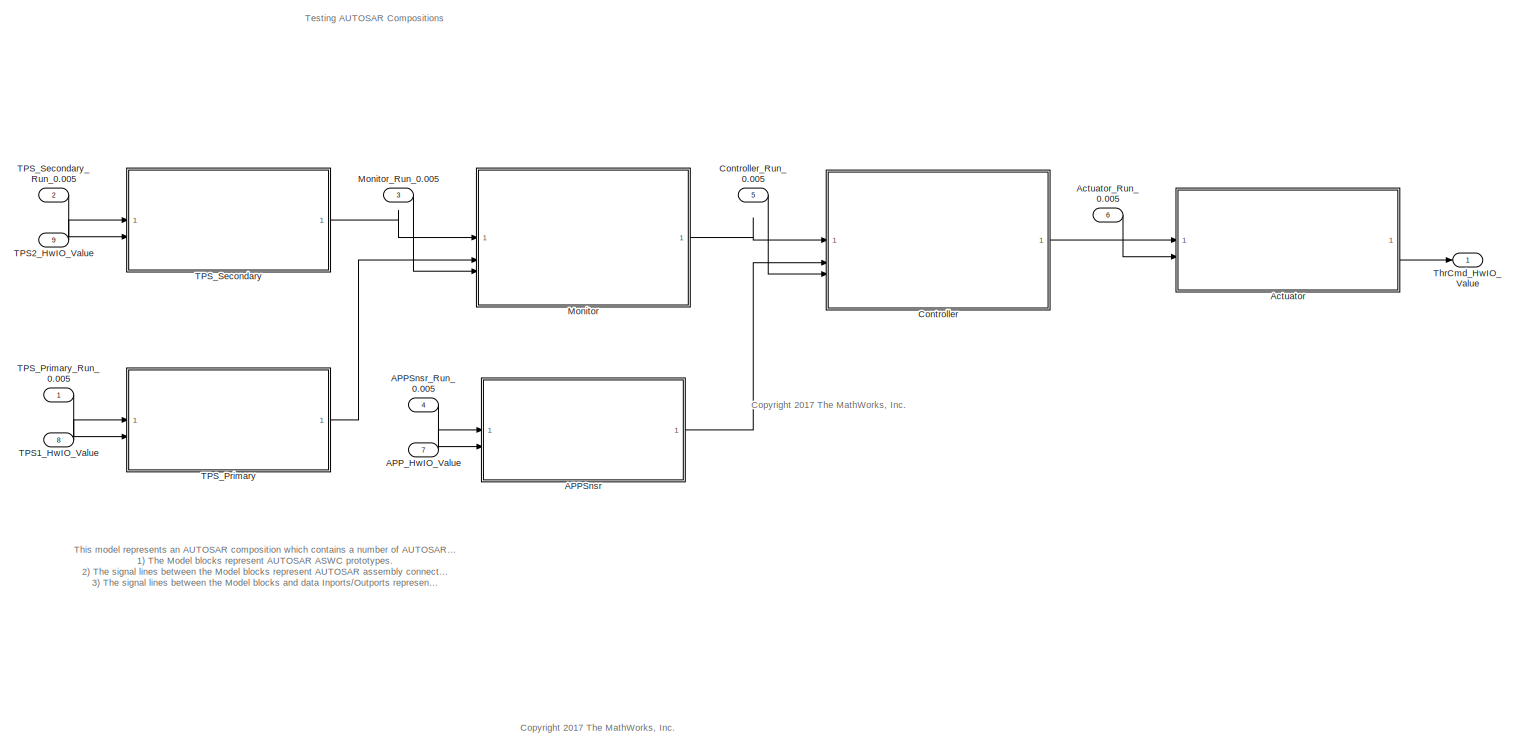
[diagram: root canvas - part 1/1, most of the canvas]
MODEL slx_12cc5ac3df1b
KIND model
CONFIG AbsTol = auto
CONFIG EnableMultiTasking = on
CONFIG FixedStep = 0.005
CONFIG MaxStep = auto
CONFIG MinStep = auto
CONFIG RelTol = 1e-3
CONFIG SampleTimeConstraint = Unconstrained
CONFIG SolverName = FixedStepDiscrete
CONFIG StartTime = 0.0
CONFIG StopTime = 1.5
BLOCK [ModelReference] APPSnsr
  CachedPortDiscreteRates = [0.005]
  ModelEventPortInfo = P:D1[0.005][0][0]
  ModelNameDialog = sltestAccelerationPedalPositionSensorMdlRef
  ModelReferenceVersion = 4.0
  PortDiscreteRates = 0.005
  ScheduleRates = on
BLOCK [Inport] APPSnsr_Run_0.005
  OutputFunctionCall = on
  Port = 4
  SampleTime = 0.005
BLOCK [Inport] APP_HwIO_Value
  OutDataTypeStr = uint16
  Port = 7
  PortDimensions = 1
  SamplingMode = Sample based
  SignalType = real
BLOCK [ModelReference] Actuator
  CachedPortDiscreteRates = [0.005]
  ModelEventPortInfo = P:D1[0.005][0][0]
  ModelNameDialog = sltestThrottlePositionActuatorMdlRef
  ModelReferenceVersion = 4.0
  PortDiscreteRates = 0.005
  ScheduleRates = on
BLOCK [Inport] Actuator_Run_0.005
  OutputFunctionCall = on
  Port = 6
  SampleTime = 0.005
BLOCK [ModelReference] Controller
  CachedPortDiscreteRates = [0.005]
  CodeInterface = Top model
  ModelEventPortInfo = P:D1[0.005][0][0]
  ModelNameDialog = sltestThrottlePositionControllerMdlRef
  ModelReferenceVersion = 4.0
  PortDiscreteRates = 0.005
  ScheduleRates = on
BLOCK [Inport] Controller_Run_0.005
  OutputFunctionCall = on
  Port = 5
  SampleTime = 0.005
BLOCK [ModelReference] Monitor
  CachedPortDiscreteRates = [0.005]
  CodeInterface = Top model
  ModelEventPortInfo = P:D1[0.005][0][0]
  ModelNameDialog = sltestThrottlePositionMonitorMdlRef
  ModelReferenceVersion = 4.0
  PortDiscreteRates = 0.005
  ScheduleRates = on
BLOCK [Inport] Monitor_Run_0.005
  OutputFunctionCall = on
  Port = 3
  SampleTime = 0.005
BLOCK [Inport] TPS1_HwIO_Value
  OutDataTypeStr = uint16
  Port = 8
  PortDimensions = 1
  SamplingMode = Sample based
  SignalType = real
BLOCK [Inport] TPS2_HwIO_Value
  OutDataTypeStr = uint16
  Port = 9
  PortDimensions = 1
  SamplingMode = Sample based
  SignalType = real
BLOCK [ModelReference] TPS_Primary
  CachedPortDiscreteRates = [0.005]
  ModelEventPortInfo = P:D1[0.005][0][0]
  ModelNameDialog = sltestThrottlePositionSensorMdlRef
  ModelReferenceVersion = 4.0
  PortDiscreteRates = 0.005
  ScheduleRates = on
BLOCK [Inport] TPS_Primary_Run_0.005
  OutputFunctionCall = on
  SampleTime = 0.005
BLOCK [ModelReference] TPS_Secondary
  CachedPortDiscreteRates = [0.005]
  ModelEventPortInfo = P:D1[0.005][0][0]
  ModelNameDialog = sltestThrottlePositionSensorMdlRef
  ModelReferenceVersion = 4.0
  PortDiscreteRates = 0.005
  ScheduleRates = on
BLOCK [Inport] TPS_Secondary_Run_0.005
  OutputFunctionCall = on
  Port = 2
  SampleTime = 0.005
BLOCK [Outport] ThrCmd_HwIO_Value
  OutDataTypeStr = int16
  PortDimensions = 1
  SamplingMode = Sample based
  SignalType = real
  VectorParamsAs1DForOutWhenUnconnected = off
ANNOTATION (root): This model represents an AUTOSAR composition which contains a number of AUTOSAR atomic software components (ASWCs): 1) The Model blocks represent AUTOSAR ASWC prototypes. 2) The signal lines between the Model blocks represent AUTOSAR assembly connectors. 3) The signal lines between the Model blocks and data Inports/Outports represent AUTOSAR delegation connectors.
ANNOTATION (root): <copyright redacted>
ANNOTATION (root): Testing AUTOSAR Compositions
LINE APPSnsr:1 -> Controller:2
LINE APPSnsr_Run_0.005:1 -> APPSnsr:2
LINE APP_HwIO_Value:1 -> APPSnsr:1
LINE Actuator:1 -> ThrCmd_HwIO_Value:1
LINE Actuator_Run_0.005:1 -> Actuator:2
LINE Controller:1 -> Actuator:1
LINE Controller_Run_0.005:1 -> Controller:3
LINE Monitor:1 -> Controller:1
LINE Monitor_Run_0.005:1 -> Monitor:3
LINE TPS1_HwIO_Value:1 -> TPS_Primary:1
LINE TPS2_HwIO_Value:1 -> TPS_Secondary:1
LINE TPS_Primary:1 -> Monitor:2
LINE TPS_Primary_Run_0.005:1 -> TPS_Primary:2
LINE TPS_Secondary:1 -> Monitor:1
LINE TPS_Secondary_Run_0.005:1 -> TPS_Secondary:2
CHART Test Sequence states=3 transitions=3
  STATE_LABEL 'Initialize\n\n%% Initialize data outputs.\nAPP_HwIO_Value = uint16(170);\nTPS1_HwIO_Value = TPS_HwIO_In;\nTPS2_HwIO_Value = TPS_HwIO_In;\n\n%% Schedule function-call outputs.\nsend(TPS_Primary_Run_0005)\nsend(TPS_Secondary_Run_0005)\nsend(Monitor_Run_0005)\nsend(APPSnsr_Run_0005)\nsend(Controller_Run_0005)\nsend(Actuator_Run_0005)'
  STATE_LABEL 'Run\n\n%% Initialize data outputs.\nAPP_HwIO_Value = uint16(681);\nTPS1_HwIO_Value = TPS_HwIO_In;\nTPS2_HwIO_Value = TPS_HwIO_In;\n\n%% Schedule function-call outputs.\nsend(TPS_Primary_Run_0005)\nsend(TPS_Secondary_Run_0005)\nsend(Monitor_Run_0005)\nsend(APPSnsr_Run_0005)\nsend(Controller_Run_0005)\nsend(Actuator_Run_0005)'
  STATE_LABEL 'Terminate\n\n%% Initialize data outputs.\nAPP_HwIO_Value = uint16(170);\nTPS1_HwIO_Value = TPS_HwIO_In;\nTPS2_HwIO_Value = TPS_HwIO_In;\n\n%% Schedule function-call outputs.\nsend(TPS_Primary_Run_0005)\nsend(TPS_Secondary_Run_0005)\nsend(Monitor_Run_0005)\nsend(APPSnsr_Run_0005)\nsend(Controller_Run_0005)\nsend(Actuator_Run_0005)'
